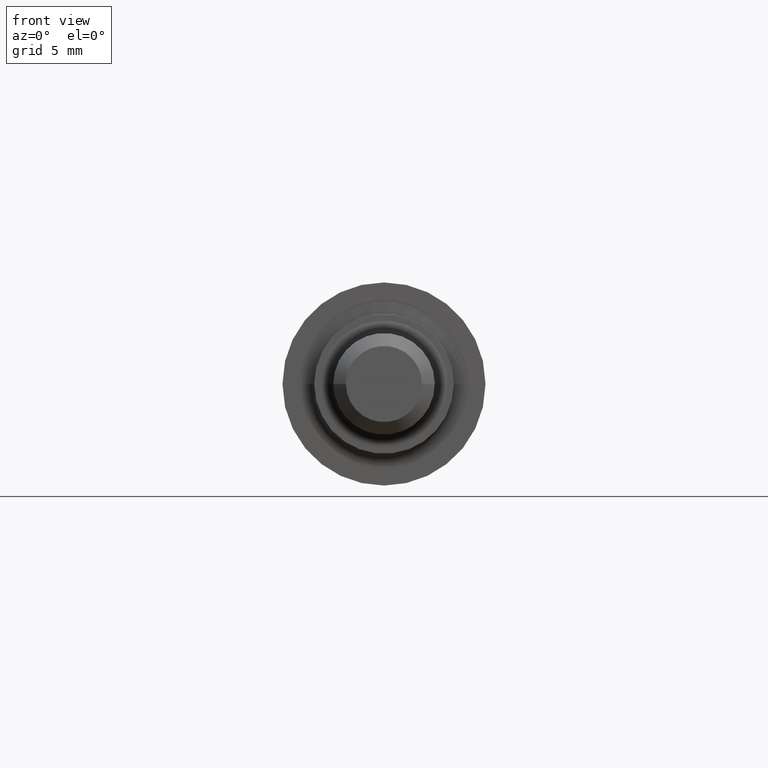
[diagram: clean part render]
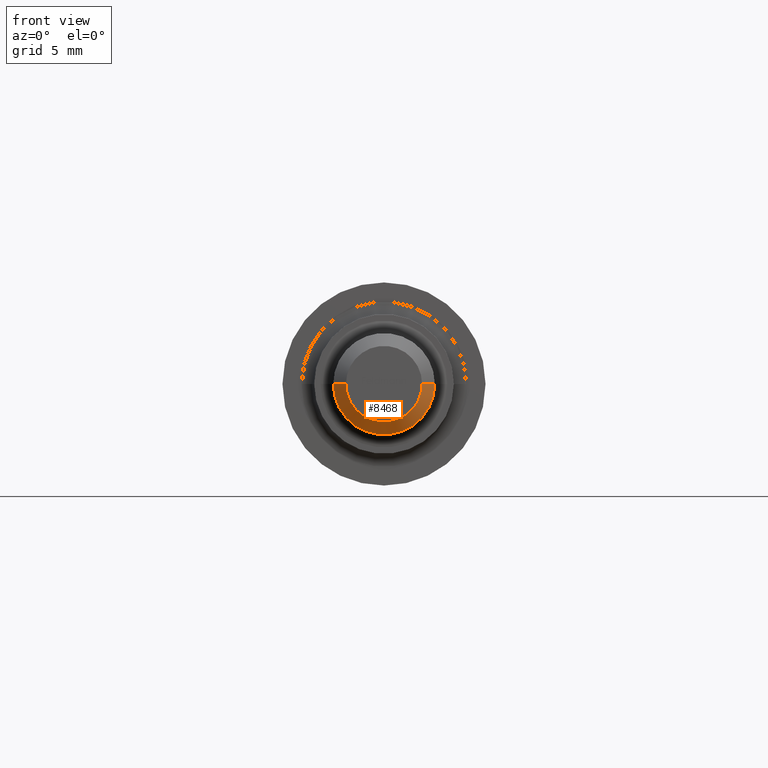
[diagram: same view with one face highlighted and labeled with its STEP entity id]
A machine part, front view. The second image highlights one B-rep face of the part: STEP entity #8468.
In plain terms, the highlighted conical surface has half-angle 45 deg.
Its self-contained STEP definition (entity closure, byte-faithful):
#547 = DIRECTION ( 'NONE',  ( 2.385244779468109800E-016, -1.000000000000000000, -0.0000000000000000000 ) ) ;
#551 = DIRECTION ( 'NONE',  ( -2.385244779468109800E-016, 1.000000000000000000, 0.0000000000000000000 ) ) ;
#862 = EDGE_CURVE ( 'NONE', #10551, #5815, #6851, .T. ) ;
#1272 = CARTESIAN_POINT ( 'NONE',  ( 4.000000000000000000, -11.99999999999999300, 0.0000000000000000000 ) ) ;
#1354 = EDGE_CURVE ( 'NONE', #10551, #7155, #8432, .T. ) ;
#2107 = ORIENTED_EDGE ( 'NONE', *, *, #2307, .F. ) ;
#2307 = EDGE_CURVE ( 'NONE', #7155, #9536, #9848, .T. ) ;
#2957 = CARTESIAN_POINT ( 'NONE',  ( 2.999999999999992500, -13.00000000000000200, 3.673940397442046100E-016 ) ) ;
#3167 = CARTESIAN_POINT ( 'NONE',  ( 2.999999999999993300, -13.00000000000000200, 4.286263797015728200E-016 ) ) ;
#3187 = DIRECTION ( 'NONE',  ( -2.385244779468109800E-016, 1.000000000000000000, 0.0000000000000000000 ) ) ;
#3289 = CARTESIAN_POINT ( 'NONE',  ( 3.100818213308542700E-015, -13.00000000000000200, 0.0000000000000000000 ) ) ;
#3314 = VECTOR ( 'NONE', #6757, 1000.000000000000100 ) ;
#4009 = FACE_OUTER_BOUND ( 'NONE', #5075, .T. ) ;
#4231 = VECTOR ( 'NONE', #5455, 1000.000000000000000 ) ;
#4248 = CARTESIAN_POINT ( 'NONE',  ( -3.999999999999994700, -11.99999999999999600, 4.898587196589409900E-016 ) ) ;
#4281 = ORIENTED_EDGE ( 'NONE', *, *, #5469, .F. ) ;
#4408 = ORIENTED_EDGE ( 'NONE', *, *, #862, .T. ) ;
#4806 = CARTESIAN_POINT ( 'NONE',  ( -2.999999999999987100, -13.00000000000000200, 0.0000000000000000000 ) ) ;
#5075 = EDGE_LOOP ( 'NONE', ( #2107, #6842, #4408, #4281 ) ) ;
#5430 = CONICAL_SURFACE ( 'NONE', #8583, 2.999999999999989300, 0.7853981633974485000 ) ;
#5455 = DIRECTION ( 'NONE',  ( 0.7071067811865474600, 0.7071067811865475700, 8.659560562354934100E-017 ) ) ;
#5469 = EDGE_CURVE ( 'NONE', #9536, #5815, #9032, .T. ) ;
#5557 = AXIS2_PLACEMENT_3D ( 'NONE', #10550, #551, #7252 ) ;
#5815 = VERTEX_POINT ( 'NONE', #4248 ) ;
#6483 = CARTESIAN_POINT ( 'NONE',  ( 3.100818213308542700E-015, -13.00000000000000200, 0.0000000000000000000 ) ) ;
#6757 = DIRECTION ( 'NONE',  ( -0.7071067811865479100, 0.7071067811865471300, 0.0000000000000000000 ) ) ;
#6842 = ORIENTED_EDGE ( 'NONE', *, *, #1354, .F. ) ;
#6851 = LINE ( 'NONE', #10163, #3314 ) ;
#7155 = VERTEX_POINT ( 'NONE', #3167 ) ;
#7252 = DIRECTION ( 'NONE',  ( 1.000000000000000000, 4.336808689942020700E-016, 0.0000000000000000000 ) ) ;
#8432 = CIRCLE ( 'NONE', #9050, 2.999999999999990200 ) ;
#8468 = ADVANCED_FACE ( 'NONE', ( #4009 ), #5430, .T. ) ;
#8583 = AXIS2_PLACEMENT_3D ( 'NONE', #3289, #3187, #10796 ) ;
#9032 = CIRCLE ( 'NONE', #5557, 3.999999999999997300 ) ;
#9050 = AXIS2_PLACEMENT_3D ( 'NONE', #6483, #547, #9850 ) ;
#9536 = VERTEX_POINT ( 'NONE', #1272 ) ;
#9848 = LINE ( 'NONE', #2957, #4231 ) ;
#9850 = DIRECTION ( 'NONE',  ( 1.000000000000000000, 0.0000000000000000000, 0.0000000000000000000 ) ) ;
#10163 = CARTESIAN_POINT ( 'NONE',  ( -2.999999999999986200, -13.00000000000000200, 0.0000000000000000000 ) ) ;
#10550 = CARTESIAN_POINT ( 'NONE',  ( 2.862293735361730500E-015, -11.99999999999999500, 0.0000000000000000000 ) ) ;
#10551 = VERTEX_POINT ( 'NONE', #4806 ) ;
#10796 = DIRECTION ( 'NONE',  ( -1.000000000000000000, 0.0000000000000000000, 0.0000000000000000000 ) ) ;